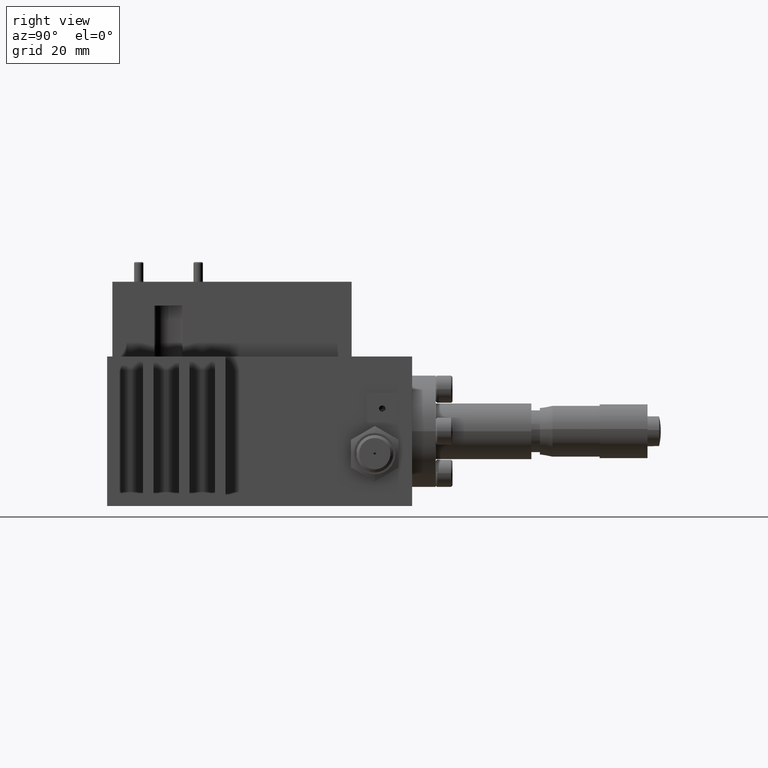
[diagram: clean part render]
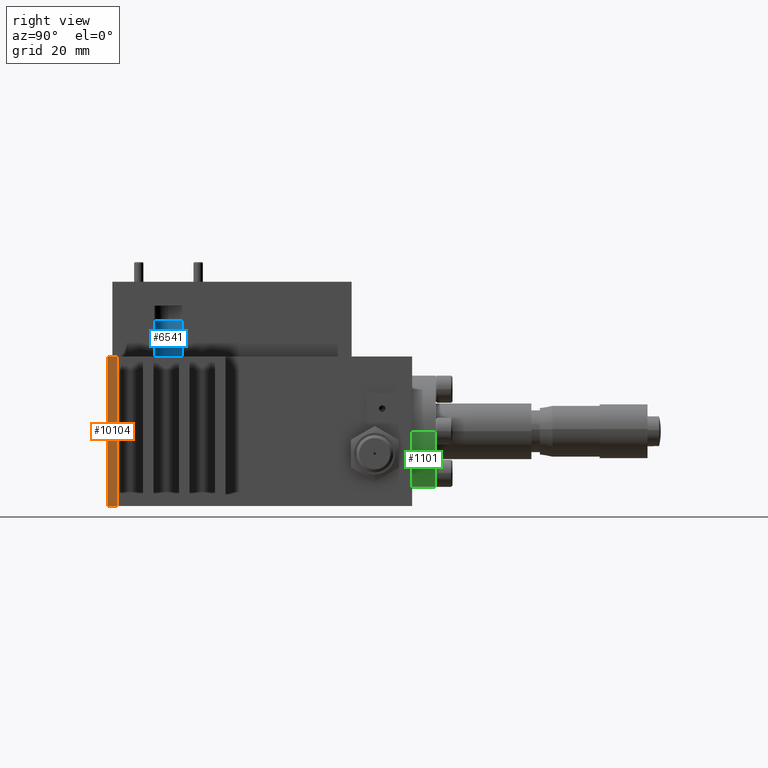
[diagram: same view with three faces highlighted in distinct colors, each labeled with its STEP entity id]
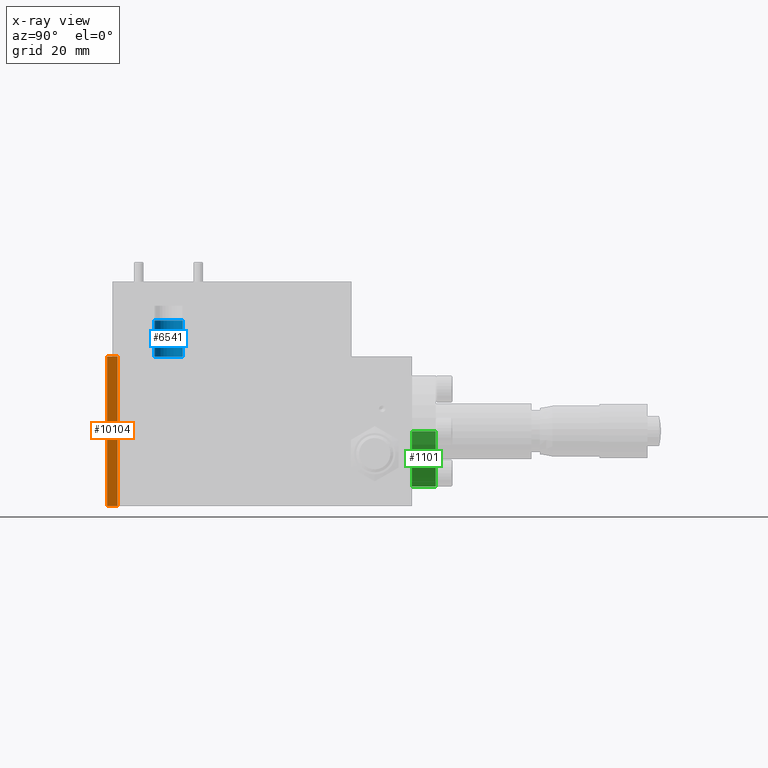
[diagram: x-ray of the same camera — body ghosted, the three highlighted faces saturated]
A machine part, right view with three faces highlighted in distinct colors.
The next image is the same camera in x-ray (body ghosted, the three faces saturated) — at least one of them is partly hidden behind the body in this view.
Their STEP definitions:

[orange] entity #10104 — the highlighted planar face has unit normal (-1, -0, 0).
#2776 = VERTEX_POINT ( 'NONE', #21615 ) ;
#3395 = ORIENTED_EDGE ( 'NONE', *, *, #22109, .F. ) ;
#3403 = CARTESIAN_POINT ( 'NONE',  ( 1.375000000000000200, -1.170000000000000200, -0.5000000000000002200 ) ) ;
#3928 = VECTOR ( 'NONE', #32050, 39.37007874015748100 ) ;
#5208 = DIRECTION ( 'NONE',  ( 3.902639990948943500E-015, -1.000000000000000000, 0.0000000000000000000 ) ) ;
#5984 = VECTOR ( 'NONE', #23261, 39.37007874015748100 ) ;
#6937 = CARTESIAN_POINT ( 'NONE',  ( 1.375000000000000200, -1.170000000000000200, 0.4999999999999997800 ) ) ;
#9251 = EDGE_LOOP ( 'NONE', ( #37276, #3395, #38760, #38342 ) ) ;
#9528 = CARTESIAN_POINT ( 'NONE',  ( 1.375000000000000400, -1.240000000000000200, 0.4999999999999997800 ) ) ;
#10104 = ADVANCED_FACE ( 'NONE', ( #31878 ), #20150, .F. ) ;
#10175 = AXIS2_PLACEMENT_3D ( 'NONE', #23015, #10964, #5208 ) ;
#10964 = DIRECTION ( 'NONE',  ( -1.000000000000000000, -3.902639990948943500E-015, 0.0000000000000000000 ) ) ;
#12845 = LINE ( 'NONE', #9528, #3928 ) ;
#12853 = DIRECTION ( 'NONE',  ( -3.902639990948943500E-015, 1.000000000000000000, -0.0000000000000000000 ) ) ;
#15336 = LINE ( 'NONE', #29536, #5984 ) ;
#17332 = VERTEX_POINT ( 'NONE', #33529 ) ;
#17697 = VERTEX_POINT ( 'NONE', #20260 ) ;
#18860 = DIRECTION ( 'NONE',  ( -3.902639990948943500E-015, 1.000000000000000000, -0.0000000000000000000 ) ) ;
#20150 = PLANE ( 'NONE',  #10175 ) ;
#20260 = CARTESIAN_POINT ( 'NONE',  ( 1.375000000000000200, -1.170000000000000200, 0.4999999999999997800 ) ) ;
#21043 = VECTOR ( 'NONE', #12853, 39.37007874015748100 ) ;
#21313 = EDGE_CURVE ( 'NONE', #17332, #30586, #28988, .T. ) ;
#21615 = CARTESIAN_POINT ( 'NONE',  ( 1.375000000000000400, -1.240000000000000200, 0.4999999999999997800 ) ) ;
#22109 = EDGE_CURVE ( 'NONE', #17697, #30586, #15336, .T. ) ;
#23015 = CARTESIAN_POINT ( 'NONE',  ( 1.375000000000000200, -1.170000000000000200, 0.4999999999999997800 ) ) ;
#23261 = DIRECTION ( 'NONE',  ( -0.0000000000000000000, -0.0000000000000000000, -1.000000000000000000 ) ) ;
#23633 = EDGE_CURVE ( 'NONE', #2776, #17697, #27883, .T. ) ;
#23672 = VECTOR ( 'NONE', #18860, 39.37007874015748100 ) ;
#27883 = LINE ( 'NONE', #6937, #23672 ) ;
#28988 = LINE ( 'NONE', #3403, #21043 ) ;
#29536 = CARTESIAN_POINT ( 'NONE',  ( 1.375000000000000200, -1.170000000000000200, 0.4999999999999997800 ) ) ;
#30586 = VERTEX_POINT ( 'NONE', #34286 ) ;
#31878 = FACE_OUTER_BOUND ( 'NONE', #9251, .T. ) ;
#32050 = DIRECTION ( 'NONE',  ( -0.0000000000000000000, -0.0000000000000000000, -1.000000000000000000 ) ) ;
#33529 = CARTESIAN_POINT ( 'NONE',  ( 1.375000000000000400, -1.240000000000000200, -0.5000000000000002200 ) ) ;
#34286 = CARTESIAN_POINT ( 'NONE',  ( 1.375000000000000200, -1.170000000000000200, -0.5000000000000002200 ) ) ;
#37276 = ORIENTED_EDGE ( 'NONE', *, *, #21313, .T. ) ;
#38342 = ORIENTED_EDGE ( 'NONE', *, *, #38593, .T. ) ;
#38593 = EDGE_CURVE ( 'NONE', #2776, #17332, #12845, .T. ) ;
#38760 = ORIENTED_EDGE ( 'NONE', *, *, #23633, .F. ) ;

[blue] entity #6541 — the highlighted cylindrical surface (edge-blend (fillet) strip) has radius 2.3876 mm, axis along (0, -0, 1).
#359 = VERTEX_POINT ( 'NONE', #24520 ) ;
#1420 = AXIS2_PLACEMENT_3D ( 'NONE', #20607, #23608, #5671 ) ;
#1699 = EDGE_CURVE ( 'NONE', #359, #31791, #24754, .T. ) ;
#2061 = ORIENTED_EDGE ( 'NONE', *, *, #11313, .T. ) ;
#2384 = ORIENTED_EDGE ( 'NONE', *, *, #26559, .F. ) ;
#3146 = AXIS2_PLACEMENT_3D ( 'NONE', #38274, #29589, #14160 ) ;
#4646 = CARTESIAN_POINT ( 'NONE',  ( 0.2815000000000001400, -0.9240000000000008200, 0.7399999999999996600 ) ) ;
#4698 = CIRCLE ( 'NONE', #1420, 0.09400000000000001400 ) ;
#5671 = DIRECTION ( 'NONE',  ( -1.000000000000000000, 0.0000000000000000000, 0.0000000000000000000 ) ) ;
#6541 = ADVANCED_FACE ( 'NONE', ( #15199 ), #38184, .F. ) ;
#6927 = EDGE_CURVE ( 'NONE', #33392, #12662, #7669, .T. ) ;
#7669 = LINE ( 'NONE', #11740, #8123 ) ;
#8123 = VECTOR ( 'NONE', #23773, 39.37007874015748100 ) ;
#8485 = DIRECTION ( 'NONE',  ( 1.162264728904460000E-016, -2.220446049250312600E-016, 1.000000000000000000 ) ) ;
#11313 = EDGE_CURVE ( 'NONE', #12662, #31791, #21004, .T. ) ;
#11740 = CARTESIAN_POINT ( 'NONE',  ( 0.2815000000000000800, -0.7360000000000016500, 0.4999999999999997200 ) ) ;
#12662 = VERTEX_POINT ( 'NONE', #28980 ) ;
#14160 = DIRECTION ( 'NONE',  ( -1.000000000000000000, 0.0000000000000000000, 0.0000000000000000000 ) ) ;
#14404 = VECTOR ( 'NONE', #8485, 39.37007874015748100 ) ;
#14452 = ORIENTED_EDGE ( 'NONE', *, *, #6927, .T. ) ;
#15199 = FACE_OUTER_BOUND ( 'NONE', #18785, .T. ) ;
#18785 = EDGE_LOOP ( 'NONE', ( #2061, #30079, #2384, #14452 ) ) ;
#18978 = DIRECTION ( 'NONE',  ( 1.000000000000000000, 0.0000000000000000000, 0.0000000000000000000 ) ) ;
#20607 = CARTESIAN_POINT ( 'NONE',  ( 0.2815000000000000800, -0.8300000000000012900, 0.4999999999999996700 ) ) ;
#20929 = CARTESIAN_POINT ( 'NONE',  ( 0.2815000000000001400, -0.9240000000000008200, 0.4999999999999996700 ) ) ;
#21004 = CIRCLE ( 'NONE', #3146, 0.09400000000000001400 ) ;
#23071 = CARTESIAN_POINT ( 'NONE',  ( 0.2815000000000000800, -0.7360000000000016500, 0.4999999999999997200 ) ) ;
#23608 = DIRECTION ( 'NONE',  ( 1.162264728904460000E-016, -2.220446049250312600E-016, 1.000000000000000000 ) ) ;
#23773 = DIRECTION ( 'NONE',  ( 1.162264728904460000E-016, -2.220446049250312600E-016, 1.000000000000000000 ) ) ;
#24520 = CARTESIAN_POINT ( 'NONE',  ( 0.2815000000000001400, -0.9240000000000008200, 0.4999999999999996700 ) ) ;
#24651 = AXIS2_PLACEMENT_3D ( 'NONE', #25009, #28009, #18978 ) ;
#24754 = LINE ( 'NONE', #20929, #14404 ) ;
#25009 = CARTESIAN_POINT ( 'NONE',  ( 0.2815000000000000800, -0.8300000000000012900, 0.4999999999999996700 ) ) ;
#26559 = EDGE_CURVE ( 'NONE', #33392, #359, #4698, .T. ) ;
#28009 = DIRECTION ( 'NONE',  ( 1.162264728904460000E-016, -2.220446049250312800E-016, 1.000000000000000000 ) ) ;
#28980 = CARTESIAN_POINT ( 'NONE',  ( 0.2815000000000000800, -0.7360000000000016500, 0.7399999999999997700 ) ) ;
#29589 = DIRECTION ( 'NONE',  ( 1.162264728904460000E-016, -2.220446049250312600E-016, 1.000000000000000000 ) ) ;
#30079 = ORIENTED_EDGE ( 'NONE', *, *, #1699, .F. ) ;
#31791 = VERTEX_POINT ( 'NONE', #4646 ) ;
#33392 = VERTEX_POINT ( 'NONE', #23071 ) ;
#38184 = CYLINDRICAL_SURFACE ( 'NONE', #24651, 0.09400000000000004200 ) ;
#38274 = CARTESIAN_POINT ( 'NONE',  ( 0.2815000000000001400, -0.8300000000000012900, 0.7399999999999996600 ) ) ;

[green] entity #1101 — the highlighted cylindrical surface (partial cylindrical patch) has radius 9.525 mm, axis along (0, 1, 0).
#1101 = ADVANCED_FACE ( 'NONE', ( #18677 ), #32279, .T. ) ;
#2298 = DIRECTION ( 'NONE',  ( 2.319949590955133500E-018, 1.000000000000000000, 5.550089440289664400E-017 ) ) ;
#3732 = DIRECTION ( 'NONE',  ( 2.319949590955133500E-018, 1.000000000000000000, 5.550089440289664400E-017 ) ) ;
#4018 = ORIENTED_EDGE ( 'NONE', *, *, #22556, .T. ) ;
#4294 = ORIENTED_EDGE ( 'NONE', *, *, #23771, .T. ) ;
#4715 = DIRECTION ( 'NONE',  ( 2.319949590955133500E-018, 1.000000000000000000, 5.550089440289664400E-017 ) ) ;
#4886 = AXIS2_PLACEMENT_3D ( 'NONE', #29380, #32433, #38462 ) ;
#5820 = VERTEX_POINT ( 'NONE', #19867 ) ;
#8610 = EDGE_CURVE ( 'NONE', #27340, #13981, #37591, .T. ) ;
#9601 = CIRCLE ( 'NONE', #10909, 0.3749999999999999400 ) ;
#10516 = CARTESIAN_POINT ( 'NONE',  ( -0.3749999999999999400, 1.598000000000000100, 3.130100208990631600E-017 ) ) ;
#10909 = AXIS2_PLACEMENT_3D ( 'NONE', #25790, #2298, #10983 ) ;
#10983 = DIRECTION ( 'NONE',  ( -1.000000000000000000, 0.0000000000000000000, -3.035766082959413000E-017 ) ) ;
#12469 = EDGE_CURVE ( 'NONE', #13981, #5820, #16210, .T. ) ;
#12500 = LINE ( 'NONE', #10516, #23262 ) ;
#13981 = VERTEX_POINT ( 'NONE', #26660 ) ;
#16210 = CIRCLE ( 'NONE', #24051, 0.3749999999999999400 ) ;
#17577 = EDGE_LOOP ( 'NONE', ( #23704, #4294, #4018, #26940 ) ) ;
#18677 = FACE_OUTER_BOUND ( 'NONE', #17577, .T. ) ;
#19271 = CARTESIAN_POINT ( 'NONE',  ( -0.3749999999999999400, 0.7979999999999998200, -1.309971343241101100E-017 ) ) ;
#19867 = CARTESIAN_POINT ( 'NONE',  ( -0.3749999999999999400, 0.9580000000000003000, -4.219570327947516800E-018 ) ) ;
#21639 = VECTOR ( 'NONE', #4715, 39.37007874015748100 ) ;
#22556 = EDGE_CURVE ( 'NONE', #26934, #5820, #12500, .T. ) ;
#23262 = VECTOR ( 'NONE', #38183, 39.37007874015748100 ) ;
#23704 = ORIENTED_EDGE ( 'NONE', *, *, #8610, .F. ) ;
#23771 = EDGE_CURVE ( 'NONE', #27340, #26934, #9601, .T. ) ;
#24051 = AXIS2_PLACEMENT_3D ( 'NONE', #24705, #3732, #24834 ) ;
#24705 = CARTESIAN_POINT ( 'NONE',  ( 2.959533883033234800E-017, 0.9580000000000003000, 7.164552483150279700E-018 ) ) ;
#24834 = DIRECTION ( 'NONE',  ( -1.000000000000000000, 0.0000000000000000000, -3.035766082959413000E-017 ) ) ;
#25790 = CARTESIAN_POINT ( 'NONE',  ( 2.922414689577951100E-017, 0.7979999999999998200, -1.715590621313214700E-018 ) ) ;
#26660 = CARTESIAN_POINT ( 'NONE',  ( 0.3749999999999999400, 0.9580000000000003000, 6.003285871004206400E-017 ) ) ;
#26934 = VERTEX_POINT ( 'NONE', #19271 ) ;
#26940 = ORIENTED_EDGE ( 'NONE', *, *, #12469, .F. ) ;
#27340 = VERTEX_POINT ( 'NONE', #36022 ) ;
#29380 = CARTESIAN_POINT ( 'NONE',  ( 3.108010656854362100E-017, 1.598000000000000100, 4.268512490100411300E-017 ) ) ;
#32279 = CYLINDRICAL_SURFACE ( 'NONE', #4886, 0.3749999999999999400 ) ;
#32433 = DIRECTION ( 'NONE',  ( 2.319949590955133500E-018, 1.000000000000000000, 5.550089440289664400E-017 ) ) ;
#36022 = CARTESIAN_POINT ( 'NONE',  ( 0.3749999999999999400, 0.7979999999999998200, 6.003285871004206400E-017 ) ) ;
#37591 = LINE ( 'NONE', #37620, #21639 ) ;
#37620 = CARTESIAN_POINT ( 'NONE',  ( 0.3749999999999999400, 1.598000000000000100, 9.999350268012764500E-017 ) ) ;
#38183 = DIRECTION ( 'NONE',  ( 2.319949590955133500E-018, 1.000000000000000000, 5.550089440289664400E-017 ) ) ;
#38462 = DIRECTION ( 'NONE',  ( -1.000000000000000000, 0.0000000000000000000, -3.035766082959413000E-017 ) ) ;